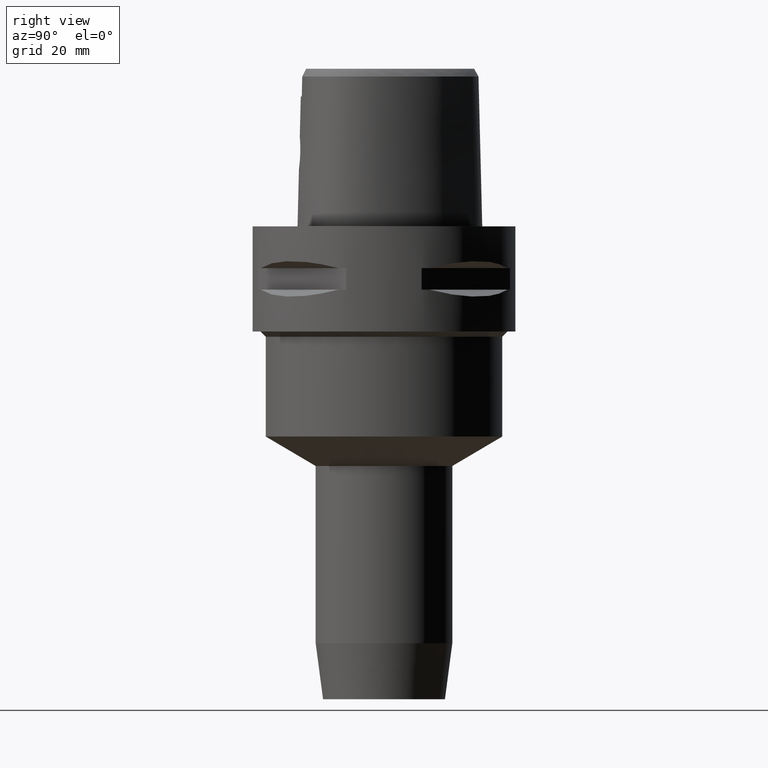
[diagram: clean part render]
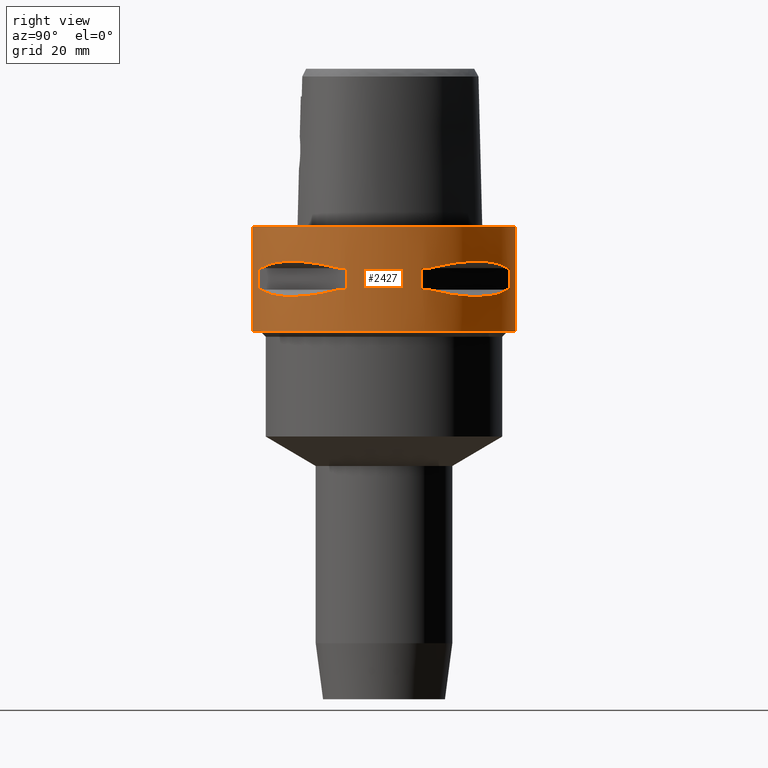
[diagram: same view with one face highlighted and labeled with its STEP entity id]
A machine part, right view. The second image highlights one B-rep face of the part: STEP entity #2427.
In plain terms, the highlighted cylindrical surface (partial cylindrical patch) has radius 25 mm, axis along (0, 0, -1).
Its self-contained STEP definition (entity closure, byte-faithful):
#284=CARTESIAN_POINT('',(0.E0,1.279755905109E-14,0.E0));
#285=DIRECTION('',(0.E0,0.E0,-1.E0));
#286=DIRECTION('',(0.E0,1.E0,0.E0));
#287=AXIS2_PLACEMENT_3D('',#284,#285,#286);
#376=DIRECTION('',(0.E0,0.E0,-1.E0));
#377=VECTOR('',#376,2.E1);
#378=CARTESIAN_POINT('',(0.E0,-2.5E1,0.E0));
#379=LINE('',#378,#377);
#433=DIRECTION('',(0.E0,0.E0,-1.E0));
#434=VECTOR('',#433,2.E1);
#435=CARTESIAN_POINT('',(0.E0,2.5E1,0.E0));
#436=LINE('',#435,#434);
#440=DIRECTION('',(0.E0,0.E0,-1.E0));
#441=VECTOR('',#440,4.1E0);
#442=CARTESIAN_POINT('',(7.159921374231E0,-2.395277699798E1,-7.95E0));
#443=LINE('',#442,#441);
#447=CARTESIAN_POINT('',(8.646484890752E0,-2.345715880140E1,-1.205E1));
#448=CARTESIAN_POINT('',(1.045010326509E1,-2.279233152396E1,-1.251490951850E1));
#449=CARTESIAN_POINT('',(1.371898848499E1,-2.112432544032E1,-1.316846568912E1));
#450=CARTESIAN_POINT('',(1.780567581317E1,-1.780567581317E1,-1.348201576758E1));
#451=CARTESIAN_POINT('',(2.112432544032E1,-1.371898848499E1,-1.316846568912E1));
#452=CARTESIAN_POINT('',(2.279233152396E1,-1.045010326509E1,-1.251490951850E1));
#453=CARTESIAN_POINT('',(2.345715880140E1,-8.646484890752E0,-1.205E1));
#458=DIRECTION('',(0.E0,0.E0,1.E0));
#459=VECTOR('',#458,4.1E0);
#460=CARTESIAN_POINT('',(2.395277699798E1,-7.159921374231E0,-1.205E1));
#461=LINE('',#460,#459);
#465=DIRECTION('',(0.E0,0.E0,-1.E0));
#466=VECTOR('',#465,4.1E0);
#467=CARTESIAN_POINT('',(2.395277699798E1,7.159921374231E0,-7.95E0));
#468=LINE('',#467,#466);
#472=CARTESIAN_POINT('',(2.345715880140E1,8.646484890752E0,-1.205E1));
#473=CARTESIAN_POINT('',(2.279233152396E1,1.045010326509E1,-1.251490951850E1));
#474=CARTESIAN_POINT('',(2.112432544032E1,1.371898848499E1,-1.316846568912E1));
#475=CARTESIAN_POINT('',(1.780567581317E1,1.780567581317E1,-1.348201576758E1));
#476=CARTESIAN_POINT('',(1.371898848499E1,2.112432544032E1,-1.316846568912E1));
#477=CARTESIAN_POINT('',(1.045010326509E1,2.279233152396E1,-1.251490951850E1));
#478=CARTESIAN_POINT('',(8.646484890752E0,2.345715880140E1,-1.205E1));
#483=DIRECTION('',(0.E0,0.E0,1.E0));
#484=VECTOR('',#483,4.1E0);
#485=CARTESIAN_POINT('',(7.159921374231E0,2.395277699798E1,-1.205E1));
#486=LINE('',#485,#484);
#490=CARTESIAN_POINT('',(0.E0,1.279755905109E-14,-2.E1));
#491=DIRECTION('',(0.E0,0.E0,1.E0));
#492=DIRECTION('',(0.E0,-1.E0,0.E0));
#493=AXIS2_PLACEMENT_3D('',#490,#491,#492);
#1236=CARTESIAN_POINT('',(8.646484890752E0,-2.345715880140E1,
-7.949999999999E0));
#1237=CARTESIAN_POINT('',(1.045010326509E1,-2.279233152396E1,
-7.485090481496E0));
#1238=CARTESIAN_POINT('',(1.371898848499E1,-2.112432544032E1,
-6.831534310876E0));
#1239=CARTESIAN_POINT('',(1.780567581317E1,-1.780567581317E1,
-6.517984232422E0));
#1240=CARTESIAN_POINT('',(2.112432544032E1,-1.371898848499E1,
-6.831534310876E0));
#1241=CARTESIAN_POINT('',(2.279233152396E1,-1.045010326509E1,
-7.485090481496E0));
#1242=CARTESIAN_POINT('',(2.345715880140E1,-8.646484890752E0,
-7.949999999999E0));
#1247=CARTESIAN_POINT('',(0.E0,1.279755905109E-14,-7.95E0));
#1248=DIRECTION('',(0.E0,0.E0,1.E0));
#1249=DIRECTION('',(9.382863520558E-1,-3.458593956303E-1,0.E0));
#1250=AXIS2_PLACEMENT_3D('',#1247,#1248,#1249);
#1255=CARTESIAN_POINT('',(0.E0,1.279755905109E-14,-7.95E0));
#1256=DIRECTION('',(0.E0,0.E0,1.E0));
#1257=DIRECTION('',(2.863968549694E-1,-9.581110799190E-1,0.E0));
#1258=AXIS2_PLACEMENT_3D('',#1255,#1256,#1257);
#1277=CARTESIAN_POINT('',(0.E0,1.279755905109E-14,-1.205E1));
#1278=DIRECTION('',(0.E0,0.E0,-1.E0));
#1279=DIRECTION('',(9.581110799190E-1,-2.863968549694E-1,0.E0));
#1280=AXIS2_PLACEMENT_3D('',#1277,#1278,#1279);
#1285=CARTESIAN_POINT('',(0.E0,1.279755905109E-14,-1.205E1));
#1286=DIRECTION('',(0.E0,0.E0,-1.E0));
#1287=DIRECTION('',(3.458593956303E-1,-9.382863520558E-1,0.E0));
#1288=AXIS2_PLACEMENT_3D('',#1285,#1286,#1287);
#1307=CARTESIAN_POINT('',(2.345715880140E1,8.646484890752E0,-7.949999999999E0));
#1308=CARTESIAN_POINT('',(2.279233152396E1,1.045010326509E1,-7.485090481496E0));
#1309=CARTESIAN_POINT('',(2.112432544032E1,1.371898848499E1,-6.831534310876E0));
#1310=CARTESIAN_POINT('',(1.780567581317E1,1.780567581317E1,-6.517984232422E0));
#1311=CARTESIAN_POINT('',(1.371898848499E1,2.112432544032E1,-6.831534310876E0));
#1312=CARTESIAN_POINT('',(1.045010326509E1,2.279233152396E1,-7.485090481496E0));
#1313=CARTESIAN_POINT('',(8.646484890752E0,2.345715880140E1,-7.949999999999E0));
#1318=CARTESIAN_POINT('',(0.E0,1.279755905109E-14,-7.95E0));
#1319=DIRECTION('',(0.E0,0.E0,1.E0));
#1320=DIRECTION('',(3.458593956303E-1,9.382863520558E-1,0.E0));
#1321=AXIS2_PLACEMENT_3D('',#1318,#1319,#1320);
#1326=CARTESIAN_POINT('',(0.E0,1.279755905109E-14,-7.95E0));
#1327=DIRECTION('',(0.E0,0.E0,1.E0));
#1328=DIRECTION('',(9.581110799190E-1,2.863968549694E-1,0.E0));
#1329=AXIS2_PLACEMENT_3D('',#1326,#1327,#1328);
#1348=CARTESIAN_POINT('',(0.E0,1.279755905109E-14,-1.205E1));
#1349=DIRECTION('',(0.E0,0.E0,-1.E0));
#1350=DIRECTION('',(2.863968549694E-1,9.581110799190E-1,0.E0));
#1351=AXIS2_PLACEMENT_3D('',#1348,#1349,#1350);
#1356=CARTESIAN_POINT('',(0.E0,1.279755905109E-14,-1.205E1));
#1357=DIRECTION('',(0.E0,0.E0,-1.E0));
#1358=DIRECTION('',(9.382863520558E-1,3.458593956303E-1,0.E0));
#1359=AXIS2_PLACEMENT_3D('',#1356,#1357,#1358);
#1542=CARTESIAN_POINT('',(0.E0,-2.5E1,0.E0));
#1543=CARTESIAN_POINT('',(0.E0,2.5E1,0.E0));
#1544=VERTEX_POINT('',#1542);
#1545=VERTEX_POINT('',#1543);
#1546=CARTESIAN_POINT('',(0.E0,2.5E1,-2.E1));
#1547=VERTEX_POINT('',#1546);
#1548=CARTESIAN_POINT('',(0.E0,-2.5E1,-2.E1));
#1549=VERTEX_POINT('',#1548);
#1576=VERTEX_POINT('',#1236);
#1577=VERTEX_POINT('',#1242);
#1578=CARTESIAN_POINT('',(7.159921374235E0,-2.395277699798E1,-7.95E0));
#1579=VERTEX_POINT('',#1578);
#1580=CARTESIAN_POINT('',(7.159921374231E0,-2.395277699798E1,-1.205E1));
#1581=VERTEX_POINT('',#1580);
#1582=CARTESIAN_POINT('',(8.646484890757E0,-2.345715880140E1,-1.205E1));
#1583=VERTEX_POINT('',#1582);
#1584=VERTEX_POINT('',#453);
#1585=CARTESIAN_POINT('',(2.395277699798E1,-7.159921374235E0,-1.205E1));
#1586=VERTEX_POINT('',#1585);
#1587=CARTESIAN_POINT('',(2.395277699798E1,-7.159921374231E0,-7.95E0));
#1588=VERTEX_POINT('',#1587);
#1589=VERTEX_POINT('',#1307);
#1590=VERTEX_POINT('',#1313);
#1591=CARTESIAN_POINT('',(2.395277699798E1,7.159921374235E0,-7.95E0));
#1592=VERTEX_POINT('',#1591);
#1593=CARTESIAN_POINT('',(2.395277699798E1,7.159921374231E0,-1.205E1));
#1594=VERTEX_POINT('',#1593);
#1595=CARTESIAN_POINT('',(2.345715880140E1,8.646484890757E0,-1.205E1));
#1596=VERTEX_POINT('',#1595);
#1597=VERTEX_POINT('',#478);
#1598=CARTESIAN_POINT('',(7.159921374235E0,2.395277699798E1,-1.205E1));
#1599=VERTEX_POINT('',#1598);
#1600=CARTESIAN_POINT('',(7.159921374231E0,2.395277699798E1,-7.95E0));
#1601=VERTEX_POINT('',#1600);
#2379=CARTESIAN_POINT('',(0.E0,1.279755905109E-14,4.5E0));
#2380=DIRECTION('',(0.E0,0.E0,-1.E0));
#2381=DIRECTION('',(0.E0,-1.E0,0.E0));
#2382=AXIS2_PLACEMENT_3D('',#2379,#2380,#2381);
#2383=CYLINDRICAL_SURFACE('',#2382,2.5E1);
#2384=ORIENTED_EDGE('',*,*,#2333,.T.);
#2386=ORIENTED_EDGE('',*,*,#2385,.F.);
#2387=ORIENTED_EDGE('',*,*,#2336,.F.);
#2388=ORIENTED_EDGE('',*,*,#2318,.F.);
#2389=EDGE_LOOP('',(#2384,#2386,#2387,#2388));
#2390=FACE_OUTER_BOUND('',#2389,.F.);
#2392=ORIENTED_EDGE('',*,*,#2391,.F.);
#2394=ORIENTED_EDGE('',*,*,#2393,.F.);
#2396=ORIENTED_EDGE('',*,*,#2395,.T.);
#2398=ORIENTED_EDGE('',*,*,#2397,.F.);
#2400=ORIENTED_EDGE('',*,*,#2399,.T.);
#2402=ORIENTED_EDGE('',*,*,#2401,.F.);
#2404=ORIENTED_EDGE('',*,*,#2403,.T.);
#2406=ORIENTED_EDGE('',*,*,#2405,.F.);
#2407=EDGE_LOOP('',(#2392,#2394,#2396,#2398,#2400,#2402,#2404,#2406));
#2408=FACE_BOUND('',#2407,.F.);
#2410=ORIENTED_EDGE('',*,*,#2409,.F.);
#2412=ORIENTED_EDGE('',*,*,#2411,.F.);
#2414=ORIENTED_EDGE('',*,*,#2413,.T.);
#2416=ORIENTED_EDGE('',*,*,#2415,.F.);
#2418=ORIENTED_EDGE('',*,*,#2417,.T.);
#2420=ORIENTED_EDGE('',*,*,#2419,.F.);
#2422=ORIENTED_EDGE('',*,*,#2421,.T.);
#2424=ORIENTED_EDGE('',*,*,#2423,.F.);
#2425=EDGE_LOOP('',(#2410,#2412,#2414,#2416,#2418,#2420,#2422,#2424));
#2426=FACE_BOUND('',#2425,.F.);
#288=CIRCLE('',#287,2.5E1);
#454=B_SPLINE_CURVE_WITH_KNOTS('',3,(#447,#448,#449,#450,#451,#452,#453),
.UNSPECIFIED.,.F.,.F.,(4,1,1,1,4),(0.E0,2.5E-1,5.E-1,7.5E-1,1.E0),
.UNSPECIFIED.);
#479=B_SPLINE_CURVE_WITH_KNOTS('',3,(#472,#473,#474,#475,#476,#477,#478),
.UNSPECIFIED.,.F.,.F.,(4,1,1,1,4),(0.E0,2.5E-1,5.E-1,7.5E-1,1.E0),
.UNSPECIFIED.);
#494=CIRCLE('',#493,2.5E1);
#1243=B_SPLINE_CURVE_WITH_KNOTS('',3,(#1236,#1237,#1238,#1239,#1240,#1241,
#1242),.UNSPECIFIED.,.F.,.F.,(4,1,1,1,4),(0.E0,2.5E-1,5.E-1,7.5E-1,1.E0),
.UNSPECIFIED.);
#1251=CIRCLE('',#1250,2.5E1);
#1259=CIRCLE('',#1258,2.5E1);
#1281=CIRCLE('',#1280,2.5E1);
#1289=CIRCLE('',#1288,2.5E1);
#1314=B_SPLINE_CURVE_WITH_KNOTS('',3,(#1307,#1308,#1309,#1310,#1311,#1312,
#1313),.UNSPECIFIED.,.F.,.F.,(4,1,1,1,4),(0.E0,2.5E-1,5.E-1,7.5E-1,1.E0),
.UNSPECIFIED.);
#1322=CIRCLE('',#1321,2.5E1);
#1330=CIRCLE('',#1329,2.5E1);
#1352=CIRCLE('',#1351,2.5E1);
#1360=CIRCLE('',#1359,2.5E1);
#2318=EDGE_CURVE('',#1545,#1544,#288,.T.);
#2333=EDGE_CURVE('',#1545,#1547,#436,.T.);
#2336=EDGE_CURVE('',#1544,#1549,#379,.T.);
#2385=EDGE_CURVE('',#1549,#1547,#494,.T.);
#2391=EDGE_CURVE('',#1576,#1577,#1243,.T.);
#2393=EDGE_CURVE('',#1579,#1576,#1259,.T.);
#2395=EDGE_CURVE('',#1579,#1581,#443,.T.);
#2397=EDGE_CURVE('',#1583,#1581,#1289,.T.);
#2399=EDGE_CURVE('',#1583,#1584,#454,.T.);
#2401=EDGE_CURVE('',#1586,#1584,#1281,.T.);
#2403=EDGE_CURVE('',#1586,#1588,#461,.T.);
#2405=EDGE_CURVE('',#1577,#1588,#1251,.T.);
#2409=EDGE_CURVE('',#1589,#1590,#1314,.T.);
#2411=EDGE_CURVE('',#1592,#1589,#1330,.T.);
#2413=EDGE_CURVE('',#1592,#1594,#468,.T.);
#2415=EDGE_CURVE('',#1596,#1594,#1360,.T.);
#2417=EDGE_CURVE('',#1596,#1597,#479,.T.);
#2419=EDGE_CURVE('',#1599,#1597,#1352,.T.);
#2421=EDGE_CURVE('',#1599,#1601,#486,.T.);
#2423=EDGE_CURVE('',#1590,#1601,#1322,.T.);
#2427=ADVANCED_FACE('',(#2390,#2408,#2426),#2383,.T.);